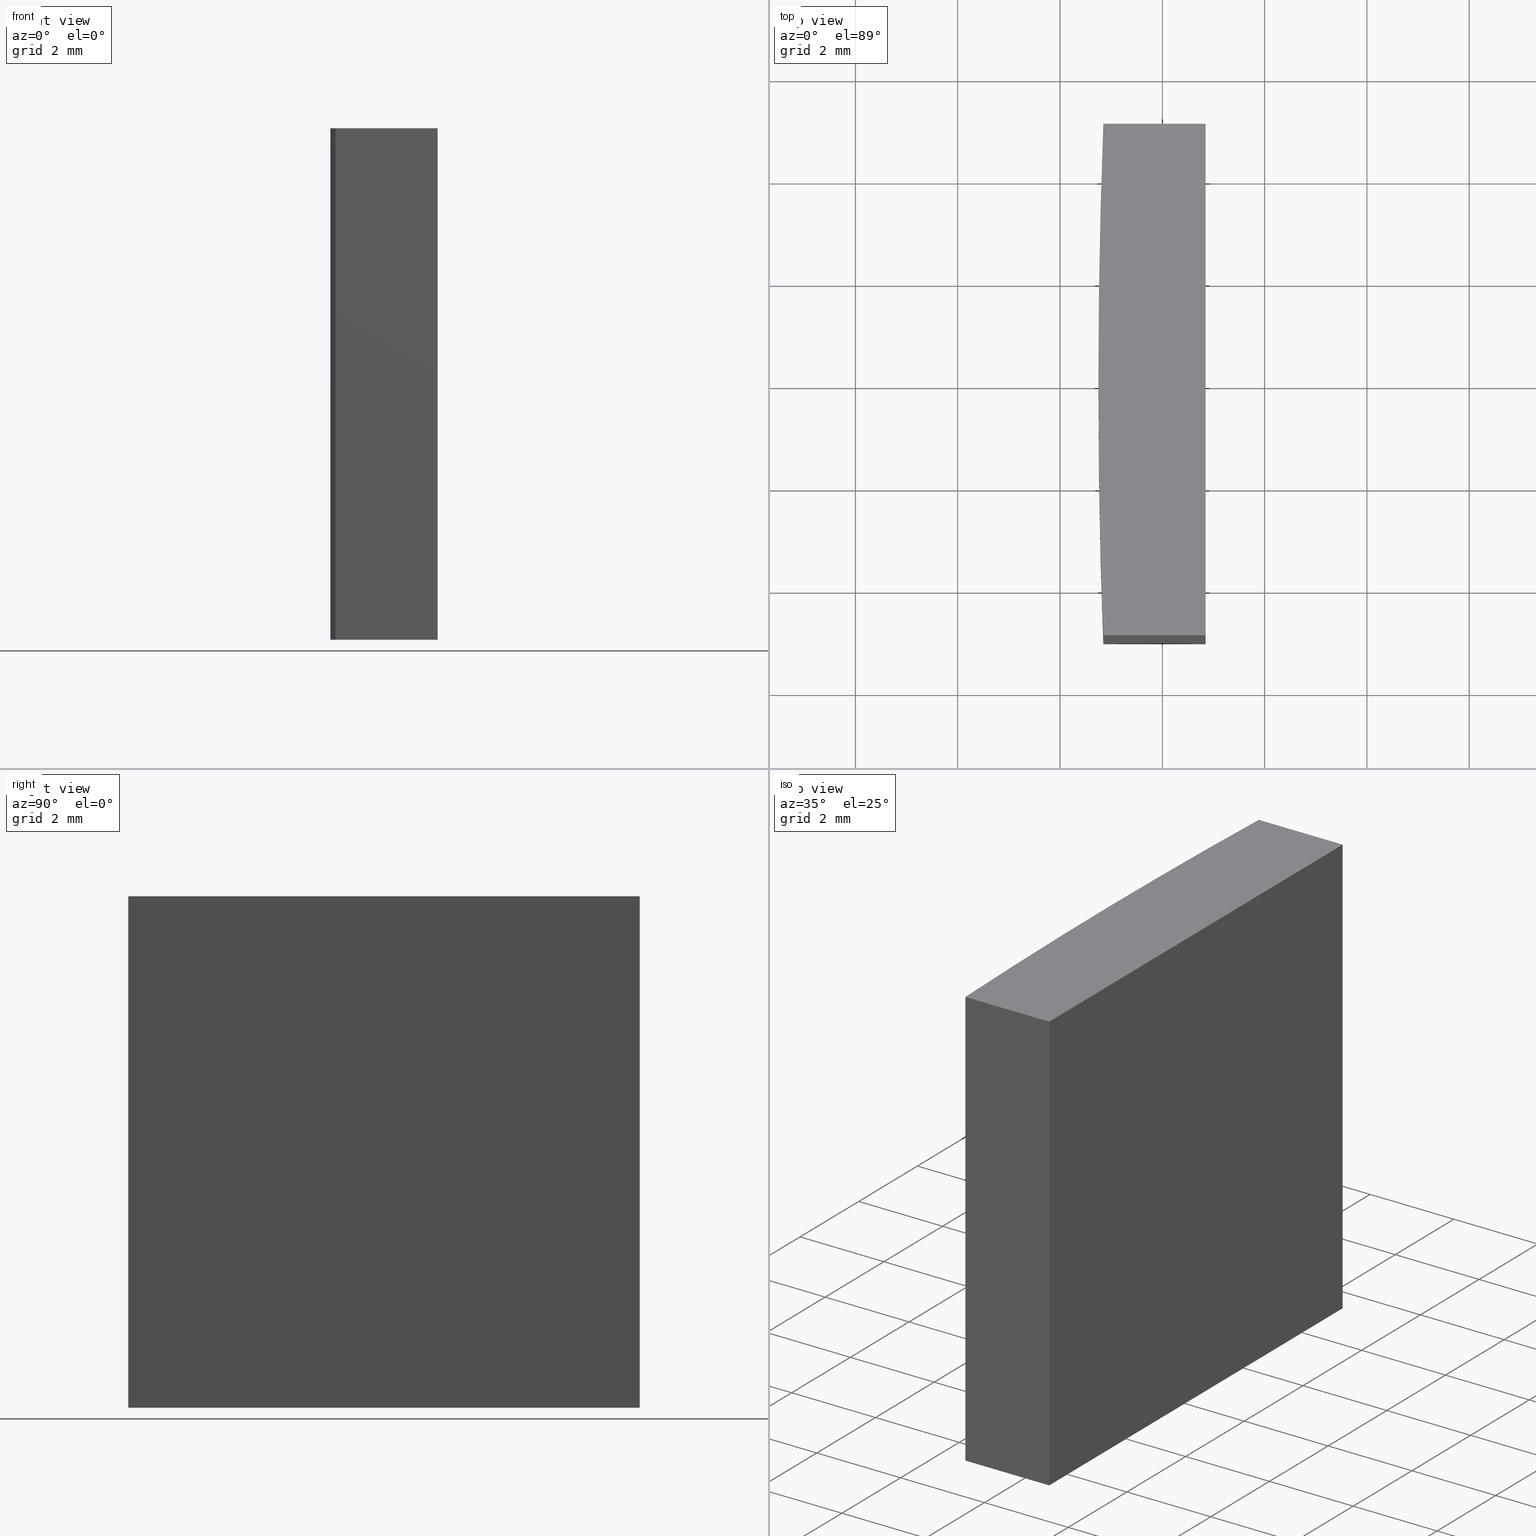
[diagram: canonical four-view strip — front | top / right | iso, engineering-drawing reading convention]
A machine part, canonical four-view strip (front | top / right | iso — engineering-drawing reading convention). The complete STEP part file that produces these views, byte-faithful:
ISO-10303-21;
HEADER;
FILE_DESCRIPTION (( 'STEP AP203' ),
    '1' );
FILE_NAME ('155525.STEP',
    '2024-05-13T03:22:00',
    ( '' ),
    ( '' ),
    'SwSTEP 2.0',
    'SolidWorks 2020',
    '' );
FILE_SCHEMA (( 'CONFIG_CONTROL_DESIGN' ));
ENDSEC;

DATA;
#1 = CARTESIAN_POINT ( 'NONE',  ( -127.1532519915778181, 5.000000000000000888, 10.00000000000000000 ) ) ;
#2 = CC_DESIGN_DATE_AND_TIME_ASSIGNMENT ( #95, #73, ( #243 ) ) ;
#3 = LINE ( 'NONE', #211, #198 ) ;
#4 = AXIS2_PLACEMENT_3D ( 'NONE', #168, #248, #59 ) ;
#5 = APPLICATION_CONTEXT ( 'configuration controlled 3d designs of mechanical parts and assemblies' ) ;
#6 = DATE_AND_TIME ( #215, #240 ) ;
#7 = CALENDAR_DATE ( 2024, 13, 5 ) ;
#8 = ADVANCED_FACE ( 'NONE', ( #209 ), #228, .T. ) ;
#9 = ORIENTED_EDGE ( 'NONE', *, *, #212, .T. ) ;
#10 = VECTOR ( 'NONE', #80, 1000.000000000000000 ) ;
#11 = LOCAL_TIME ( 11, 22, 0.000000000000000000, #258 ) ;
#12 = VERTEX_POINT ( 'NONE', #269 ) ;
#13 = PRODUCT_DEFINITION_FORMATION_WITH_SPECIFIED_SOURCE ( '�κ�', '', #29, .NOT_KNOWN. ) ;
#14 = LINE ( 'NONE', #206, #178 ) ;
#15 = ORIENTED_EDGE ( 'NONE', *, *, #25, .F. ) ;
#16 = FACE_OUTER_BOUND ( 'NONE', #265, .T. ) ;
#17 = CARTESIAN_POINT ( 'NONE',  ( -127.1532519915778181, -5.000000000000000888, 10.00000000000000000 ) ) ;
#18 = AXIS2_PLACEMENT_3D ( 'NONE', #62, #226, #152 ) ;
#19 = CARTESIAN_POINT ( 'NONE',  ( 0.000000000000000000, 0.000000000000000000, 0.000000000000000000 ) ) ;
#20 = CARTESIAN_POINT ( 'NONE',  ( 0.000000000000000000, 0.000000000000000000, 0.000000000000000000 ) ) ;
#21 = DIRECTION ( 'NONE',  ( -0.000000000000000000, -0.000000000000000000, -1.000000000000000000 ) ) ;
#22 = CC_DESIGN_PERSON_AND_ORGANIZATION_ASSIGNMENT ( #159, #69, ( #13 ) ) ;
#23 = COORDINATED_UNIVERSAL_TIME_OFFSET ( 8, 0, .AHEAD. ) ;
#24 = CARTESIAN_POINT ( 'NONE',  ( -129.1532519915778039, -4.999999999999997335, 0.000000000000000000 ) ) ;
#25 = EDGE_CURVE ( 'NONE', #96, #264, #270, .T. ) ;
#26 = DIRECTION ( 'NONE',  ( -0.000000000000000000, 1.000000000000000000, -0.000000000000000000 ) ) ;
#27 = MANIFOLD_SOLID_BREP ( '͹̨-����1', #190 ) ;
#28 = APPLICATION_CONTEXT ( 'configuration controlled 3d designs of mechanical parts and assemblies' ) ;
#29 = PRODUCT ( '155525', '155525', '', ( #250 ) ) ;
#30 = PERSON ( 'δָ��', 'δָ��', 'δָ��', ('δָ��'), ('δָ��'), ('δָ��') ) ;
#31 = ORIENTED_EDGE ( 'NONE', *, *, #124, .F. ) ;
#32 = VERTEX_POINT ( 'NONE', #84 ) ;
#33 = ORIENTED_EDGE ( 'NONE', *, *, #38, .T. ) ;
#34 = ORIENTED_EDGE ( 'NONE', *, *, #141, .F. ) ;
#35 = APPLICATION_PROTOCOL_DEFINITION ( 'international standard', 'config_control_design', 1994, #28 ) ;
#36 = CC_DESIGN_DATE_AND_TIME_ASSIGNMENT ( #238, #157, ( #197 ) ) ;
#37 = CARTESIAN_POINT ( 'NONE',  ( 0.000000000000000000, 0.000000000000000000, 10.00000000000000000 ) ) ;
#38 = EDGE_CURVE ( 'NONE', #125, #142, #148, .T. ) ;
#39 = PERSON_AND_ORGANIZATION ( #30, #163 ) ;
#40 = DIRECTION ( 'NONE',  ( -0.000000000000000000, -0.000000000000000000, -1.000000000000000000 ) ) ;
#41 = APPROVAL_PERSON_ORGANIZATION ( #61, #173, #227 ) ;
#42 = COORDINATED_UNIVERSAL_TIME_OFFSET ( 8, 0, .AHEAD. ) ;
#43 = CARTESIAN_POINT ( 'NONE',  ( -129.1532519915778039, -4.999999999999997335, 10.00000000000000000 ) ) ;
#44 = DIRECTION ( 'NONE',  ( -1.000000000000000000, -1.734723475976805517E-15, -0.000000000000000000 ) ) ;
#45 = DIRECTION ( 'NONE',  ( -0.000000000000000000, -0.000000000000000000, -1.000000000000000000 ) ) ;
#46 = CC_DESIGN_PERSON_AND_ORGANIZATION_ASSIGNMENT ( #179, #195, ( #13 ) ) ;
#47 = DIRECTION ( 'NONE',  ( -1.000000000000000000, 1.734723475976805517E-15, 0.000000000000000000 ) ) ;
#48 = CIRCLE ( 'NONE', #77, 129.2500000000000000 ) ;
#49 = PERSON_AND_ORGANIZATION ( #30, #163 ) ;
#50 = EDGE_CURVE ( 'NONE', #142, #264, #174, .T. ) ;
#51 = SHAPE_DEFINITION_REPRESENTATION ( #132, #93 ) ;
#52 = ORIENTED_EDGE ( 'NONE', *, *, #223, .F. ) ;
#53 = VECTOR ( 'NONE', #170, 1000.000000000000000 ) ;
#54 = ORIENTED_EDGE ( 'NONE', *, *, #70, .T. ) ;
#55 = ORIENTED_EDGE ( 'NONE', *, *, #212, .F. ) ;
#56 = DIRECTION ( 'NONE',  ( -0.000000000000000000, -0.000000000000000000, -1.000000000000000000 ) ) ;
#57 = LINE ( 'NONE', #110, #106 ) ;
#58 = ADVANCED_FACE ( 'NONE', ( #272 ), #155, .F. ) ;
#59 = DIRECTION ( 'NONE',  ( 1.000000000000000000, 0.000000000000000000, 0.000000000000000000 ) ) ;
#60 = CYLINDRICAL_SURFACE ( 'NONE', #175, 129.2500000000000000 ) ;
#61 = PERSON_AND_ORGANIZATION ( #30, #163 ) ;
#62 = CARTESIAN_POINT ( 'NONE',  ( 0.000000000000000000, 0.000000000000000000, 10.00000000000000000 ) ) ;
#63 = UNCERTAINTY_MEASURE_WITH_UNIT (LENGTH_MEASURE( 1.000000000000000082E-05 ), #204, 'distance_accuracy_value', 'NONE');
#64 = CARTESIAN_POINT ( 'NONE',  ( -127.1532519915778181, 5.000000000000000888, 0.000000000000000000 ) ) ;
#65 = CARTESIAN_POINT ( 'NONE',  ( -127.1532519915778181, -5.000000000000000888, 10.00000000000000000 ) ) ;
#66 = PLANE ( 'NONE',  #221 ) ;
#67 = CC_DESIGN_APPROVAL ( #173, ( #243 ) ) ;
#68 = SECURITY_CLASSIFICATION_LEVEL ( 'unclassified' ) ;
#69 = PERSON_AND_ORGANIZATION_ROLE ( 'design_supplier' ) ;
#70 = EDGE_CURVE ( 'NONE', #32, #96, #252, .T. ) ;
#71 = APPROVAL_ROLE ( '' ) ;
#72 = VERTEX_POINT ( 'NONE', #127 ) ;
#73 = DATE_TIME_ROLE ( 'creation_date' ) ;
#74 = ORIENTED_EDGE ( 'NONE', *, *, #263, .T. ) ;
#75 = DIRECTION ( 'NONE',  ( 0.000000000000000000, 0.000000000000000000, 1.000000000000000000 ) ) ;
#76 = ORIENTED_EDGE ( 'NONE', *, *, #233, .T. ) ;
#77 = AXIS2_PLACEMENT_3D ( 'NONE', #20, #130, #126 ) ;
#78 = ADVANCED_FACE ( 'NONE', ( #87 ), #60, .T. ) ;
#79 = CARTESIAN_POINT ( 'NONE',  ( -129.1532519915778039, -4.999999999999997335, 10.00000000000000000 ) ) ;
#80 = DIRECTION ( 'NONE',  ( 1.000000000000000000, -1.734723475976805517E-15, 0.000000000000000000 ) ) ;
#81 =( NAMED_UNIT ( * ) PLANE_ANGLE_UNIT ( ) SI_UNIT ( $, .RADIAN. ) );
#82 = DIRECTION ( 'NONE',  ( 1.000000000000000000, 0.000000000000000000, -0.000000000000000000 ) ) ;
#83 = DIRECTION ( 'NONE',  ( 1.734723475976805517E-15, -1.000000000000000000, 0.000000000000000000 ) ) ;
#84 = CARTESIAN_POINT ( 'NONE',  ( -129.2500000000000000, 0.000000000000000000, 0.000000000000000000 ) ) ;
#85 = AXIS2_PLACEMENT_3D ( 'NONE', #193, #114, #88 ) ;
#86 = APPROVAL_DATE_TIME ( #92, #117 ) ;
#87 = FACE_OUTER_BOUND ( 'NONE', #220, .T. ) ;
#88 = DIRECTION ( 'NONE',  ( 1.000000000000000000, 0.000000000000000000, 0.000000000000000000 ) ) ;
#89 = CC_DESIGN_PERSON_AND_ORGANIZATION_ASSIGNMENT ( #118, #162, ( #243 ) ) ;
#90 =( GEOMETRIC_REPRESENTATION_CONTEXT ( 3 ) GLOBAL_UNCERTAINTY_ASSIGNED_CONTEXT ( ( #63 ) ) GLOBAL_UNIT_ASSIGNED_CONTEXT ( ( #204, #81, #185 ) ) REPRESENTATION_CONTEXT ( 'NONE', 'WORKASPACE' ) );
#91 = LOCAL_TIME ( 11, 22, 0.000000000000000000, #23 ) ;
#92 = DATE_AND_TIME ( #7, #116 ) ;
#93 = ADVANCED_BREP_SHAPE_REPRESENTATION ( '155525', ( #27, #4 ), #90 ) ;
#94 = EDGE_LOOP ( 'NONE', ( #76, #144, #33, #120, #9 ) ) ;
#95 = DATE_AND_TIME ( #259, #91 ) ;
#96 = VERTEX_POINT ( 'NONE', #169 ) ;
#97 = ORIENTED_EDGE ( 'NONE', *, *, #161, .F. ) ;
#98 = AXIS2_PLACEMENT_3D ( 'NONE', #37, #40, #109 ) ;
#99 = VECTOR ( 'NONE', #207, 1000.000000000000000 ) ;
#100 = APPROVAL_PERSON_ORGANIZATION ( #133, #177, #71 ) ;
#101 = EDGE_LOOP ( 'NONE', ( #31, #241, #183, #262 ) ) ;
#102 = CARTESIAN_POINT ( 'NONE',  ( -127.1532519915778181, -5.000000000000000888, 0.000000000000000000 ) ) ;
#103 = ADVANCED_FACE ( 'NONE', ( #224 ), #256, .F. ) ;
#104 = CARTESIAN_POINT ( 'NONE',  ( -129.1532519915778039, -4.999999999999997335, 10.00000000000000000 ) ) ;
#105 = DIRECTION ( 'NONE',  ( 1.000000000000000000, 1.734723475976805517E-15, 0.000000000000000000 ) ) ;
#106 = VECTOR ( 'NONE', #154, 1000.000000000000000 ) ;
#107 = DIRECTION ( 'NONE',  ( 1.000000000000000000, 0.000000000000000000, 0.000000000000000000 ) ) ;
#108 = PERSON_AND_ORGANIZATION_ROLE ( 'design_owner' ) ;
#109 = DIRECTION ( 'NONE',  ( -1.000000000000000000, 0.000000000000000000, 0.000000000000000000 ) ) ;
#110 = CARTESIAN_POINT ( 'NONE',  ( -129.1532519915778039, 4.999999999999997335, 0.000000000000000000 ) ) ;
#111 = CALENDAR_DATE ( 2024, 13, 5 ) ;
#112 = DIRECTION ( 'NONE',  ( 1.000000000000000000, -1.734723475976805517E-15, 0.000000000000000000 ) ) ;
#113 = CIRCLE ( 'NONE', #232, 129.2500000000000000 ) ;
#114 = DIRECTION ( 'NONE',  ( 0.000000000000000000, 0.000000000000000000, 1.000000000000000000 ) ) ;
#115 = ADVANCED_FACE ( 'NONE', ( #16 ), #66, .F. ) ;
#116 = LOCAL_TIME ( 11, 22, 0.000000000000000000, #213 ) ;
#117 = APPROVAL ( #138, 'δָ��' ) ;
#118 = PERSON_AND_ORGANIZATION ( #30, #163 ) ;
#119 = LOCAL_TIME ( 11, 22, 0.000000000000000000, #214 ) ;
#120 = ORIENTED_EDGE ( 'NONE', *, *, #186, .T. ) ;
#121 = EDGE_LOOP ( 'NONE', ( #147, #97, #242, #149 ) ) ;
#122 = CC_DESIGN_SECURITY_CLASSIFICATION ( #197, ( #13 ) ) ;
#123 = ORIENTED_EDGE ( 'NONE', *, *, #161, .T. ) ;
#124 = EDGE_CURVE ( 'NONE', #222, #32, #255, .T. ) ;
#125 = VERTEX_POINT ( 'NONE', #79 ) ;
#126 = DIRECTION ( 'NONE',  ( 1.000000000000000000, 0.000000000000000000, 0.000000000000000000 ) ) ;
#127 = CARTESIAN_POINT ( 'NONE',  ( -127.1532519915778181, 5.000000000000000888, 10.00000000000000000 ) ) ;
#128 = LINE ( 'NONE', #246, #158 ) ;
#129 = DIRECTION ( 'NONE',  ( 0.000000000000000000, 0.000000000000000000, 1.000000000000000000 ) ) ;
#130 = DIRECTION ( 'NONE',  ( 0.000000000000000000, 0.000000000000000000, 1.000000000000000000 ) ) ;
#131 = DIRECTION ( 'NONE',  ( 1.734723475976805517E-15, 1.000000000000000000, -0.000000000000000000 ) ) ;
#132 = PRODUCT_DEFINITION_SHAPE ( 'NONE', 'NONE',  #243 ) ;
#133 = PERSON_AND_ORGANIZATION ( #30, #163 ) ;
#134 = CARTESIAN_POINT ( 'NONE',  ( -127.1532519915778181, 5.000000000000000888, 0.000000000000000000 ) ) ;
#135 = DIRECTION ( 'NONE',  ( -1.000000000000000000, 0.000000000000000000, 0.000000000000000000 ) ) ;
#136 = EDGE_CURVE ( 'NONE', #12, #237, #167, .T. ) ;
#137 = VECTOR ( 'NONE', #21, 1000.000000000000000 ) ;
#138 = APPROVAL_STATUS ( 'not_yet_approved' ) ;
#139 = PERSON_AND_ORGANIZATION ( #30, #163 ) ;
#140 = ORIENTED_EDGE ( 'NONE', *, *, #263, .F. ) ;
#141 = EDGE_CURVE ( 'NONE', #172, #237, #57, .T. ) ;
#142 = VERTEX_POINT ( 'NONE', #17 ) ;
#143 = ORIENTED_EDGE ( 'NONE', *, *, #70, .F. ) ;
#144 = ORIENTED_EDGE ( 'NONE', *, *, #180, .T. ) ;
#145 = AXIS2_PLACEMENT_3D ( 'NONE', #199, #83, #105 ) ;
#146 = LINE ( 'NONE', #64, #235 ) ;
#147 = ORIENTED_EDGE ( 'NONE', *, *, #202, .T. ) ;
#148 = LINE ( 'NONE', #104, #10 ) ;
#149 = ORIENTED_EDGE ( 'NONE', *, *, #50, .T. ) ;
#150 = APPROVAL_STATUS ( 'not_yet_approved' ) ;
#151 = APPROVAL_PERSON_ORGANIZATION ( #49, #117, #234 ) ;
#152 = DIRECTION ( 'NONE',  ( 1.000000000000000000, 0.000000000000000000, -0.000000000000000000 ) ) ;
#153 = FACE_OUTER_BOUND ( 'NONE', #219, .T. ) ;
#154 = DIRECTION ( 'NONE',  ( -1.000000000000000000, -1.734723475976805517E-15, -0.000000000000000000 ) ) ;
#155 = PLANE ( 'NONE',  #253 ) ;
#156 = ADVANCED_FACE ( 'NONE', ( #251 ), #249, .T. ) ;
#157 = DATE_TIME_ROLE ( 'classification_date' ) ;
#158 = VECTOR ( 'NONE', #44, 1000.000000000000000 ) ;
#159 = PERSON_AND_ORGANIZATION ( #30, #163 ) ;
#160 = ORIENTED_EDGE ( 'NONE', *, *, #202, .F. ) ;
#161 = EDGE_CURVE ( 'NONE', #72, #172, #274, .T. ) ;
#162 = PERSON_AND_ORGANIZATION_ROLE ( 'creator' ) ;
#163 = ORGANIZATION ( 'δָ��', 'δָ��', '' ) ;
#164 = ORIENTED_EDGE ( 'NONE', *, *, #180, .F. ) ;
#165 = CC_DESIGN_APPROVAL ( #117, ( #13 ) ) ;
#166 = DIRECTION ( 'NONE',  ( -0.000000000000000000, 1.000000000000000000, -0.000000000000000000 ) ) ;
#167 = LINE ( 'NONE', #247, #53 ) ;
#168 = CARTESIAN_POINT ( 'NONE',  ( 0.000000000000000000, 0.000000000000000000, 0.000000000000000000 ) ) ;
#169 = CARTESIAN_POINT ( 'NONE',  ( -129.1532519915778039, -4.999999999999997335, 0.000000000000000000 ) ) ;
#170 = DIRECTION ( 'NONE',  ( -0.000000000000000000, -0.000000000000000000, -1.000000000000000000 ) ) ;
#171 = VECTOR ( 'NONE', #45, 1000.000000000000000 ) ;
#172 = VERTEX_POINT ( 'NONE', #134 ) ;
#173 = APPROVAL ( #150, 'δָ��' ) ;
#174 = LINE ( 'NONE', #65, #99 ) ;
#175 = AXIS2_PLACEMENT_3D ( 'NONE', #189, #187, #135 ) ;
#176 = CC_DESIGN_PERSON_AND_ORGANIZATION_ASSIGNMENT ( #139, #261, ( #197 ) ) ;
#177 = APPROVAL ( #208, 'δָ��' ) ;
#178 = VECTOR ( 'NONE', #56, 1000.000000000000000 ) ;
#179 = PERSON_AND_ORGANIZATION ( #30, #163 ) ;
#180 = EDGE_CURVE ( 'NONE', #222, #125, #239, .T. ) ;
#181 = APPROVAL_DATE_TIME ( #6, #173 ) ;
#182 = ORIENTED_EDGE ( 'NONE', *, *, #136, .F. ) ;
#183 = ORIENTED_EDGE ( 'NONE', *, *, #136, .T. ) ;
#184 = CARTESIAN_POINT ( 'NONE',  ( -129.2500000000000000, 0.000000000000000000, 10.00000000000000000 ) ) ;
#185 =( NAMED_UNIT ( * ) SI_UNIT ( $, .STERADIAN. ) SOLID_ANGLE_UNIT ( ) );
#186 = EDGE_CURVE ( 'NONE', #142, #72, #3, .T. ) ;
#187 = DIRECTION ( 'NONE',  ( -0.000000000000000000, -0.000000000000000000, -1.000000000000000000 ) ) ;
#188 = CARTESIAN_POINT ( 'NONE',  ( 0.000000000000000000, 0.000000000000000000, 10.00000000000000000 ) ) ;
#189 = CARTESIAN_POINT ( 'NONE',  ( 0.000000000000000000, 0.000000000000000000, 10.00000000000000000 ) ) ;
#190 = CLOSED_SHELL ( 'NONE', ( #78, #8, #103, #58, #257, #156, #115 ) ) ;
#191 = APPROVAL_DATE_TIME ( #236, #177 ) ;
#192 = DIRECTION ( 'NONE',  ( 0.000000000000000000, 0.000000000000000000, 1.000000000000000000 ) ) ;
#193 = CARTESIAN_POINT ( 'NONE',  ( 0.000000000000000000, 0.000000000000000000, 10.00000000000000000 ) ) ;
#194 = CALENDAR_DATE ( 2024, 13, 5 ) ;
#195 = PERSON_AND_ORGANIZATION_ROLE ( 'creator' ) ;
#196 = CC_DESIGN_PERSON_AND_ORGANIZATION_ASSIGNMENT ( #39, #108, ( #29 ) ) ;
#197 = SECURITY_CLASSIFICATION ( '', '', #68 ) ;
#198 = VECTOR ( 'NONE', #26, 1000.000000000000000 ) ;
#199 = CARTESIAN_POINT ( 'NONE',  ( -129.1532519915778039, 4.999999999999997335, 10.00000000000000000 ) ) ;
#200 = ORIENTED_EDGE ( 'NONE', *, *, #50, .F. ) ;
#201 = ORIENTED_EDGE ( 'NONE', *, *, #25, .T. ) ;
#202 = EDGE_CURVE ( 'NONE', #264, #172, #146, .T. ) ;
#203 = DIRECTION ( 'NONE',  ( 0.000000000000000000, 0.000000000000000000, 1.000000000000000000 ) ) ;
#204 =( LENGTH_UNIT ( ) NAMED_UNIT ( * ) SI_UNIT ( .MILLI., .METRE. ) );
#205 = DIRECTION ( 'NONE',  ( -1.000000000000000000, 0.000000000000000000, 0.000000000000000000 ) ) ;
#206 = CARTESIAN_POINT ( 'NONE',  ( -129.1532519915778039, -4.999999999999997335, 10.00000000000000000 ) ) ;
#207 = DIRECTION ( 'NONE',  ( -0.000000000000000000, -0.000000000000000000, -1.000000000000000000 ) ) ;
#208 = APPROVAL_STATUS ( 'not_yet_approved' ) ;
#209 = FACE_OUTER_BOUND ( 'NONE', #101, .T. ) ;
#210 = VECTOR ( 'NONE', #112, 1000.000000000000000 ) ;
#211 = CARTESIAN_POINT ( 'NONE',  ( -127.1532519915778181, 5.000000000000000888, 10.00000000000000000 ) ) ;
#212 = EDGE_CURVE ( 'NONE', #72, #12, #128, .T. ) ;
#213 = COORDINATED_UNIVERSAL_TIME_OFFSET ( 8, 0, .AHEAD. ) ;
#214 = COORDINATED_UNIVERSAL_TIME_OFFSET ( 8, 0, .AHEAD. ) ;
#215 = CALENDAR_DATE ( 2024, 13, 5 ) ;
#216 = AXIS2_PLACEMENT_3D ( 'NONE', #19, #129, #107 ) ;
#217 = EDGE_LOOP ( 'NONE', ( #201, #200, #260, #74 ) ) ;
#218 = CC_DESIGN_APPROVAL ( #177, ( #197 ) ) ;
#219 = EDGE_LOOP ( 'NONE', ( #267, #182, #55, #123 ) ) ;
#220 = EDGE_LOOP ( 'NONE', ( #164, #244, #54, #140 ) ) ;
#221 = AXIS2_PLACEMENT_3D ( 'NONE', #231, #203, #82 ) ;
#222 = VERTEX_POINT ( 'NONE', #268 ) ;
#223 = EDGE_CURVE ( 'NONE', #237, #32, #48, .T. ) ;
#224 = FACE_OUTER_BOUND ( 'NONE', #217, .T. ) ;
#225 = CARTESIAN_POINT ( 'NONE',  ( -129.1532519915778039, 4.999999999999997335, 0.000000000000000000 ) ) ;
#226 = DIRECTION ( 'NONE',  ( 0.000000000000000000, 0.000000000000000000, 1.000000000000000000 ) ) ;
#227 = APPROVAL_ROLE ( '' ) ;
#228 = CYLINDRICAL_SURFACE ( 'NONE', #98, 129.2500000000000000 ) ;
#229 = PLANE ( 'NONE',  #145 ) ;
#230 = CARTESIAN_POINT ( 'NONE',  ( -127.1532519915778181, 5.000000000000000888, 10.00000000000000000 ) ) ;
#231 = CARTESIAN_POINT ( 'NONE',  ( 0.000000000000000000, 0.000000000000000000, 0.000000000000000000 ) ) ;
#232 = AXIS2_PLACEMENT_3D ( 'NONE', #188, #75, #254 ) ;
#233 = EDGE_CURVE ( 'NONE', #12, #222, #113, .T. ) ;
#234 = APPROVAL_ROLE ( '' ) ;
#235 = VECTOR ( 'NONE', #166, 1000.000000000000000 ) ;
#236 = DATE_AND_TIME ( #111, #11 ) ;
#237 = VERTEX_POINT ( 'NONE', #225 ) ;
#238 = DATE_AND_TIME ( #194, #119 ) ;
#239 = CIRCLE ( 'NONE', #85, 129.2500000000000000 ) ;
#240 = LOCAL_TIME ( 11, 22, 0.000000000000000000, #42 ) ;
#241 = ORIENTED_EDGE ( 'NONE', *, *, #233, .F. ) ;
#242 = ORIENTED_EDGE ( 'NONE', *, *, #186, .F. ) ;
#243 = PRODUCT_DEFINITION ( 'δ֪', '', #13, #273 ) ;
#244 = ORIENTED_EDGE ( 'NONE', *, *, #124, .T. ) ;
#245 = AXIS2_PLACEMENT_3D ( 'NONE', #43, #131, #47 ) ;
#246 = CARTESIAN_POINT ( 'NONE',  ( -129.1532519915778039, 4.999999999999997335, 10.00000000000000000 ) ) ;
#247 = CARTESIAN_POINT ( 'NONE',  ( -129.1532519915778039, 4.999999999999997335, 10.00000000000000000 ) ) ;
#248 = DIRECTION ( 'NONE',  ( 0.000000000000000000, 0.000000000000000000, 1.000000000000000000 ) ) ;
#249 = PLANE ( 'NONE',  #18 ) ;
#250 = MECHANICAL_CONTEXT ( 'NONE', #28, 'mechanical' ) ;
#251 = FACE_OUTER_BOUND ( 'NONE', #94, .T. ) ;
#252 = CIRCLE ( 'NONE', #216, 129.2500000000000000 ) ;
#253 = AXIS2_PLACEMENT_3D ( 'NONE', #1, #205, #192 ) ;
#254 = DIRECTION ( 'NONE',  ( 1.000000000000000000, 0.000000000000000000, 0.000000000000000000 ) ) ;
#255 = LINE ( 'NONE', #184, #137 ) ;
#256 = PLANE ( 'NONE',  #245 ) ;
#257 = ADVANCED_FACE ( 'NONE', ( #153 ), #229, .F. ) ;
#258 = COORDINATED_UNIVERSAL_TIME_OFFSET ( 8, 0, .AHEAD. ) ;
#259 = CALENDAR_DATE ( 2024, 13, 5 ) ;
#260 = ORIENTED_EDGE ( 'NONE', *, *, #38, .F. ) ;
#261 = PERSON_AND_ORGANIZATION_ROLE ( 'classification_officer' ) ;
#262 = ORIENTED_EDGE ( 'NONE', *, *, #223, .T. ) ;
#263 = EDGE_CURVE ( 'NONE', #125, #96, #14, .T. ) ;
#264 = VERTEX_POINT ( 'NONE', #102 ) ;
#265 = EDGE_LOOP ( 'NONE', ( #52, #34, #160, #15, #143 ) ) ;
#266 = PRODUCT_RELATED_PRODUCT_CATEGORY ( 'detail', '', ( #29 ) ) ;
#267 = ORIENTED_EDGE ( 'NONE', *, *, #141, .T. ) ;
#268 = CARTESIAN_POINT ( 'NONE',  ( -129.2500000000000000, 0.000000000000000000, 10.00000000000000000 ) ) ;
#269 = CARTESIAN_POINT ( 'NONE',  ( -129.1532519915778039, 4.999999999999997335, 10.00000000000000000 ) ) ;
#270 = LINE ( 'NONE', #24, #210 ) ;
#271 = APPLICATION_PROTOCOL_DEFINITION ( 'international standard', 'config_control_design', 1994, #5 ) ;
#272 = FACE_OUTER_BOUND ( 'NONE', #121, .T. ) ;
#273 = DESIGN_CONTEXT ( 'detailed design', #5, 'design' ) ;
#274 = LINE ( 'NONE', #230, #171 ) ;
ENDSEC;
END-ISO-10303-21;
